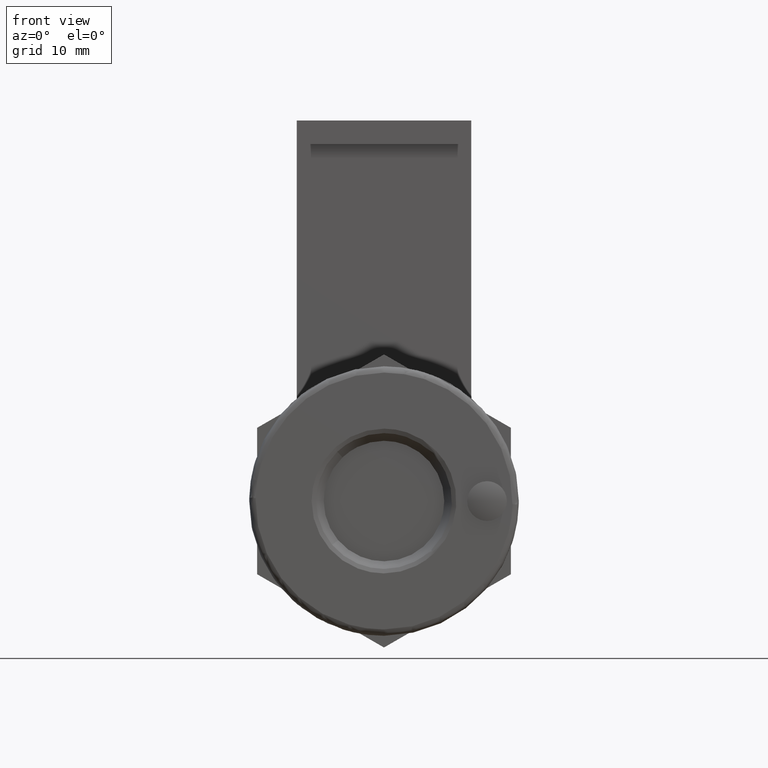
[diagram: clean part render]
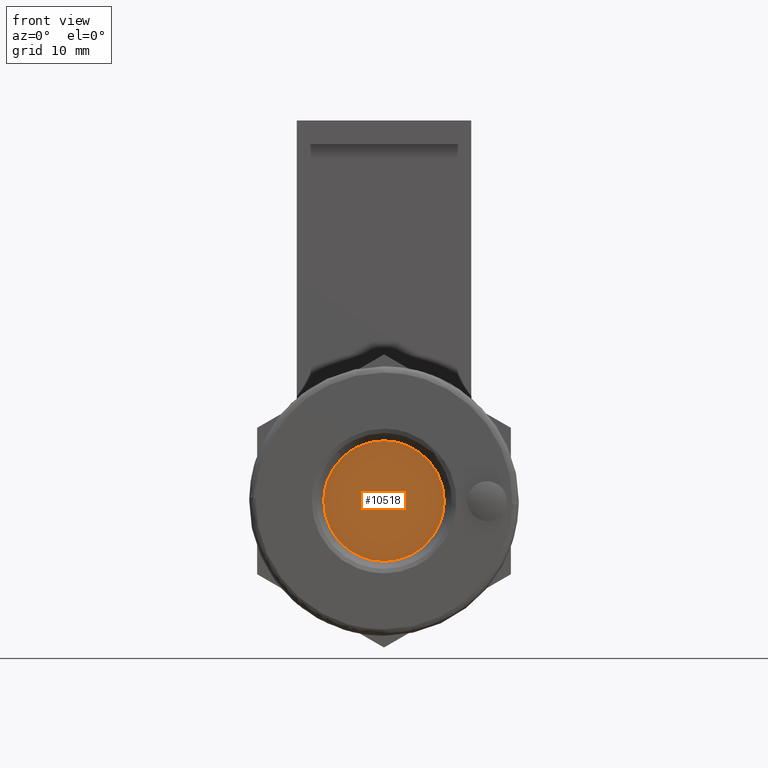
[diagram: same view with one face highlighted and labeled with its STEP entity id]
A machine part, front view. The second image highlights one B-rep face of the part: STEP entity #10518.
In plain terms, the highlighted face is a freeform B-spline surface patch.
Its self-contained STEP definition (entity closure, byte-faithful):
#9098=CARTESIAN_POINT('',(1.200000199080875,-5.231494364157387,-5.512844786469302));
#9099=VERTEX_POINT('',#9098);
#9105=CARTESIAN_POINT('',(1.200000000000000,1.421085E-014,-7.600000000000000));
#9106=VERTEX_POINT('',#9105);
#9107=CARTESIAN_POINT('',(1.200000000000000,1.421085E-014,-7.600000000000000));
#9108=CARTESIAN_POINT('',(1.200000027448475,-0.721297562595278,-7.600310980125538));
#9109=CARTESIAN_POINT('',(1.200000073186230,-1.923205018481214,-7.427507512005901));
#9110=CARTESIAN_POINT('',(1.200000141475181,-3.717718265714206,-6.711566506101478));
#9111=CARTESIAN_POINT('',(1.200000179178237,-4.708488268134106,-6.009571169451328));
#9112=CARTESIAN_POINT('',(1.200000199080875,-5.231494364157387,-5.512844786469302));
#9113=B_SPLINE_CURVE_WITH_KNOTS('',3,(#9107,#9108,#9109,#9110,#9111,#9112),.UNSPECIFIED.,.F.,.U.,(4,1,1,4),(0.000000039663139,2.163795679064994,3.606296472357405,5.770092111711547),.UNSPECIFIED.);
#9114=EDGE_CURVE('',#9106,#9099,#9113,.T.);
#9116=CARTESIAN_POINT('',(1.200000000000000,7.599999999999847,-0.000001594832519));
#9117=VERTEX_POINT('',#9116);
#9118=CARTESIAN_POINT('',(1.200000000000000,7.599999999999847,-0.000001594832519));
#9119=CARTESIAN_POINT('',(1.199999999999999,7.600131957102111,-0.590697124135058));
#9120=CARTESIAN_POINT('',(1.199999999999996,7.487043286376334,-1.554377683541194));
#9121=CARTESIAN_POINT('',(1.200000000000007,7.063379471964830,-2.891675339606637));
#9122=CARTESIAN_POINT('',(1.199999999999990,6.572343393181704,-3.867183186381267));
#9123=CARTESIAN_POINT('',(1.200000000000010,5.861483900300726,-4.889839726948110));
#9124=CARTESIAN_POINT('',(1.199999999999995,4.885407818861244,-5.902669544747798));
#9125=CARTESIAN_POINT('',(1.200000000000002,3.631071024548469,-6.729648577231018));
#9126=CARTESIAN_POINT('',(1.200000000000000,1.989410226967713,-7.409632967131038));
#9127=CARTESIAN_POINT('',(1.199999999999999,0.808385996563417,-7.600502814261142));
#9128=CARTESIAN_POINT('',(1.200000000000000,1.421085E-014,-7.600000000000000));
#9129=B_SPLINE_CURVE_WITH_KNOTS('',3,(#9118,#9119,#9120,#9121,#9122,#9123,#9124,#9125,#9126,#9127,#9128),.UNSPECIFIED.,.F.,.U.,(4,1,1,1,1,1,1,1,4),(0.000000155635160,1.772056470027181,2.891265212631122,4.197017188485526,5.036403622681986,6.621912282159515,8.393991440046339,9.513197781191085,11.938126090978750),.UNSPECIFIED.);
#9130=EDGE_CURVE('',#9117,#9106,#9129,.T.);
#9132=CARTESIAN_POINT('',(1.200000000000000,1.421085E-014,7.600000000000000));
#9133=VERTEX_POINT('',#9132);
#9134=CARTESIAN_POINT('',(1.200000000000000,1.421085E-014,7.600000000000000));
#9135=CARTESIAN_POINT('',(1.200000000000004,0.777281910264792,7.600423786633543));
#9136=CARTESIAN_POINT('',(1.199999999999993,1.865130352893491,7.431588319029131));
#9137=CARTESIAN_POINT('',(1.200000000000004,3.230944021025632,6.904609240036122));
#9138=CARTESIAN_POINT('',(1.199999999999996,4.159496072772613,6.393568820704872));
#9139=CARTESIAN_POINT('',(1.200000000000005,5.127023116571627,5.657414012850463));
#9140=CARTESIAN_POINT('',(1.200000000000002,6.153842674481211,4.565849185001120));
#9141=CARTESIAN_POINT('',(1.199999999999995,6.871560350210916,3.351512711824975));
#9142=CARTESIAN_POINT('',(1.200000000000002,7.447669512706637,1.771886461132411));
#9143=CARTESIAN_POINT('',(1.200000000000009,7.600348645014599,0.746173353959147));
#9144=CARTESIAN_POINT('',(1.200000000000000,7.599999999999847,-0.000001594832519));
#9145=B_SPLINE_CURVE_WITH_KNOTS('',3,(#9134,#9135,#9136,#9137,#9138,#9139,#9140,#9141,#9142,#9143,#9144),.UNSPECIFIED.,.F.,.U.,(4,1,1,1,1,1,1,1,4),(0.000000155078014,2.331665827388463,3.264335064782715,4.383542825831129,5.502779345343601,6.901726395950120,8.860327933232687,9.699744220943435,11.938127888737981),.UNSPECIFIED.);
#9146=EDGE_CURVE('',#9133,#9117,#9145,.T.);
#9148=CARTESIAN_POINT('',(1.199999803412985,-5.803023336662466,4.907639872537390));
#9149=VERTEX_POINT('',#9148);
#9150=CARTESIAN_POINT('',(1.199999803412985,-5.803023336662466,4.907639872537390));
#9151=CARTESIAN_POINT('',(1.199999816198926,-5.425597062884251,5.354137091391059));
#9152=CARTESIAN_POINT('',(1.199999840154863,-4.718445170284967,6.017106492259697));
#9153=CARTESIAN_POINT('',(1.199999883614484,-3.435567093736180,6.827499789748751));
#9154=CARTESIAN_POINT('',(1.199999934761883,-1.925754330775108,7.430762589469856));
#9155=CARTESIAN_POINT('',(1.199999976699019,-0.687818257289086,7.600231501148508));
#9156=CARTESIAN_POINT('',(1.200000000000000,1.421085E-014,7.600000000000000));
#9157=B_SPLINE_CURVE_WITH_KNOTS('',3,(#9150,#9151,#9152,#9153,#9154,#9155,#9156),.UNSPECIFIED.,.F.,.U.,(4,1,1,1,4),(0.000000050833648,1.753908112968762,2.888789264367204,4.539523151186023,6.602943285412804),.UNSPECIFIED.);
#9158=EDGE_CURVE('',#9149,#9133,#9157,.T.);
#9195=CARTESIAN_POINT('',(1.200000000000000,-7.599999999999819,0.000001594832603));
#9196=VERTEX_POINT('',#9195);
#9197=CARTESIAN_POINT('',(1.200000000000000,-7.599999999999819,0.000001594832603));
#9198=CARTESIAN_POINT('',(1.199999977737873,-7.600091988294365,0.555757928735323));
#9199=CARTESIAN_POINT('',(1.199999936555878,-7.486711693727586,1.583833614211402));
#9200=CARTESIAN_POINT('',(1.199999868474035,-6.937460390252689,3.283442896723620));
#9201=CARTESIAN_POINT('',(1.199999826352558,-6.287804409262999,4.334971687382472));
#9202=CARTESIAN_POINT('',(1.199999803412985,-5.803023336662466,4.907639872537390));
#9203=B_SPLINE_CURVE_WITH_KNOTS('',3,(#9197,#9198,#9199,#9200,#9201,#9202),.UNSPECIFIED.,.F.,.U.,(4,1,1,4),(0.000000030521186,1.667251843236620,3.084395958670043,5.335185106475400),.UNSPECIFIED.);
#9204=EDGE_CURVE('',#9196,#9149,#9203,.T.);
#9206=CARTESIAN_POINT('',(1.200000199080875,-5.231494364157387,-5.512844786469302));
#9207=CARTESIAN_POINT('',(1.200000183911375,-5.674351607808704,-5.092778631108645));
#9208=CARTESIAN_POINT('',(1.200000157795022,-6.272292861220806,-4.369577835407805));
#9209=CARTESIAN_POINT('',(1.200000111055022,-6.991598711560267,-3.075277538433582));
#9210=CARTESIAN_POINT('',(1.200000061484111,-7.471065927191966,-1.702584826861581));
#9211=CARTESIAN_POINT('',(1.200000020882171,-7.600114055858907,-0.578256876929946));
#9212=CARTESIAN_POINT('',(1.200000000000000,-7.599999999999819,0.000001594832603));
#9213=B_SPLINE_CURVE_WITH_KNOTS('',3,(#9206,#9207,#9208,#9209,#9210,#9211,#9212),.UNSPECIFIED.,.F.,.U.,(4,1,1,1,4),(0.000000042076022,1.831140935983717,2.794904933052035,4.433275296889532,6.168036253496235),.UNSPECIFIED.);
#9214=EDGE_CURVE('',#9099,#9196,#9213,.T.);
#10505=CARTESIAN_POINT('',(1.200000000000000,-8.359239970539253,8.359239970539450));
#10506=CARTESIAN_POINT('',(1.200000000000000,-8.359239970539253,-8.359240378235221));
#10507=CARTESIAN_POINT('',(1.200000000000000,8.359240378235052,8.359239970539450));
#10508=CARTESIAN_POINT('',(1.200000000000000,8.359240378235052,-8.359240378235221));
#10509=B_SPLINE_SURFACE_WITH_KNOTS('',1,1,((#10505,#10507),(#10506,#10508)),.UNSPECIFIED.,.F.,.F.,.U.,(2,2),(2,2),(0.0,16.718480348774669),(0.0,16.718480348774310),.UNSPECIFIED.);
#10510=ORIENTED_EDGE('',*,*,#9146,.T.);
#10511=ORIENTED_EDGE('',*,*,#9130,.T.);
#10512=ORIENTED_EDGE('',*,*,#9114,.T.);
#10513=ORIENTED_EDGE('',*,*,#9214,.T.);
#10514=ORIENTED_EDGE('',*,*,#9204,.T.);
#10515=ORIENTED_EDGE('',*,*,#9158,.T.);
#10516=EDGE_LOOP('',(#10510,#10511,#10512,#10513,#10514,#10515));
#10517=FACE_OUTER_BOUND('',#10516,.T.);
#10518=ADVANCED_FACE('',(#10517),#10509,.F.);